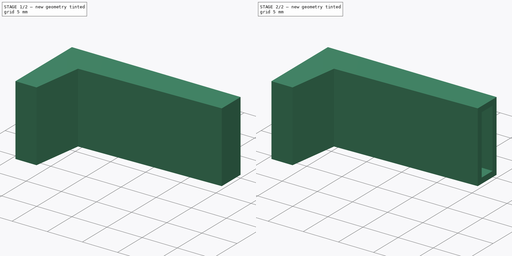
[diagram: build sequence overview — one tinted view per stage of 2, left to right]
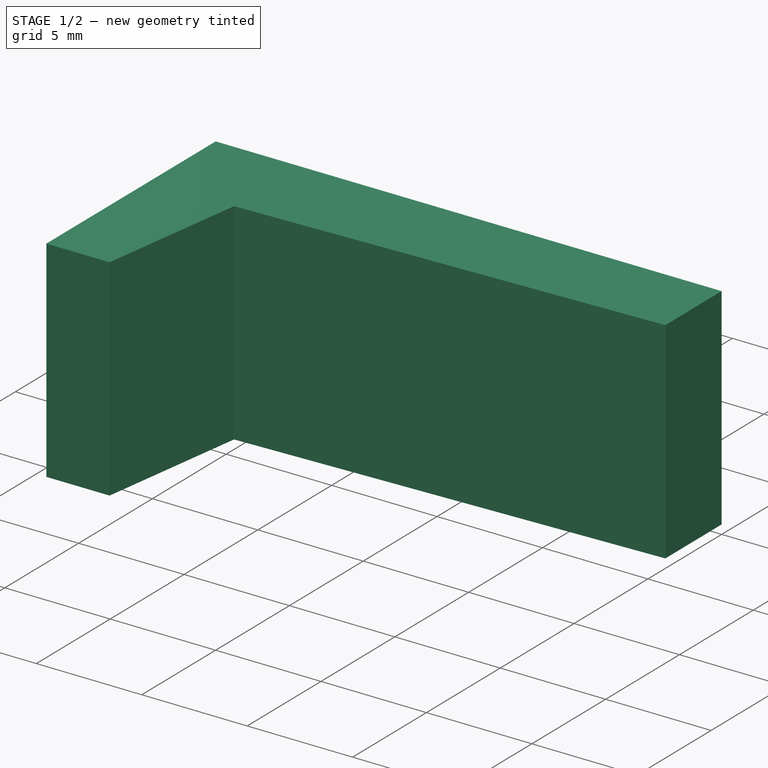
[diagram: stage 1 of 2 — iso view after this stage's code; geometry added in this stage tinted green]
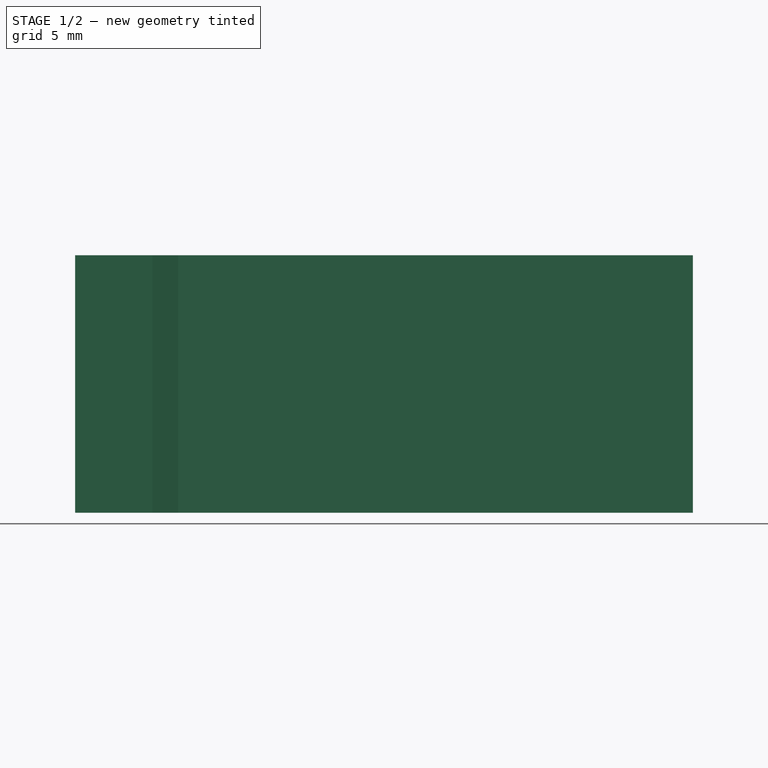
[diagram: stage 1 of 2 — front view after this stage's code; geometry added in this stage tinted green]
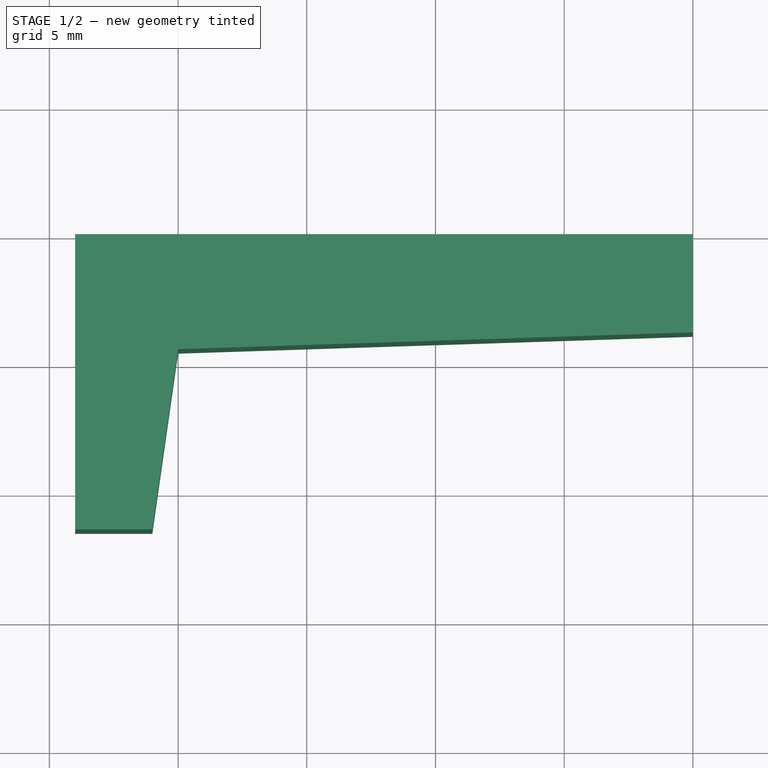
[diagram: stage 1 of 2 — top view after this stage's code; geometry added in this stage tinted green]
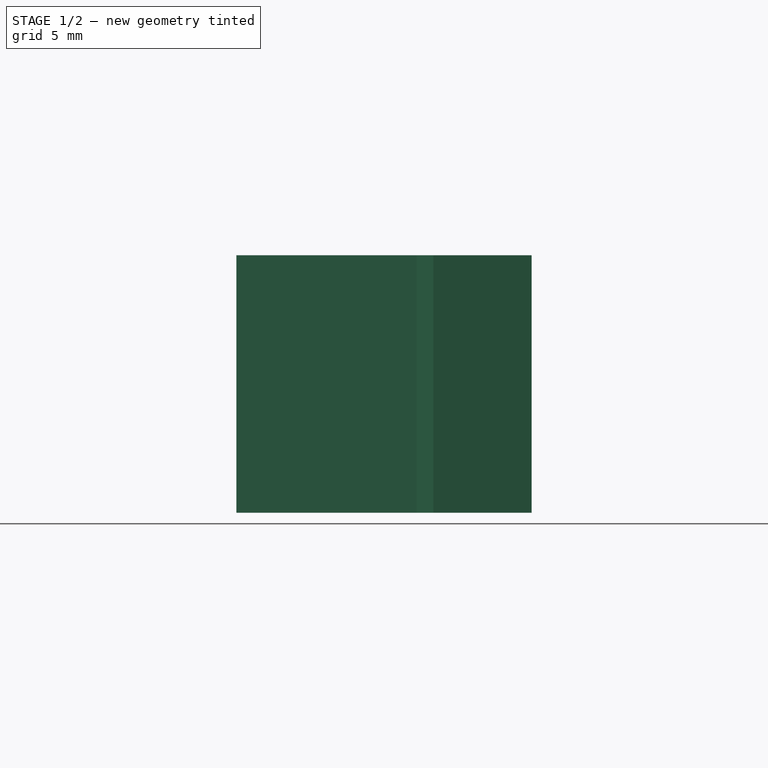
[diagram: stage 1 of 2 — right view after this stage's code; geometry added in this stage tinted green]
FCSTD DOCUMENT  (FreeCAD 0.18R16131 (Git))
Label: peg_8mm_rods
License: All rights reserved
LicenseURL: http://en.wikipedia.org/wiki/All_rights_reserved
objects: Sketcher::SketchObject×2, PartDesign::Pad×2, Part::Cut×1
note: 7 computed .brp shape members not serialized (recipe doc carries the construction recipe); baked Part::Feature solids carry a one-line shape summary decoded from their .brp

FEATURE [Sketcher::SketchObject] Sketch  label="PegSketch"
  MapMode = 5
  sketch-geometry (10):
    g0: LineSegment [constr] StartX=0 StartY=0 StartZ=0 EndX=26 EndY=0 EndZ=0
    g1: LineSegment [constr] StartX=26 StartY=0 StartZ=0 EndX=26 EndY=-3.62 EndZ=0
    g2: LineSegment [constr] StartX=26 StartY=-3.62 StartZ=0 EndX=0 EndY=-4.47 EndZ=0
    g3: LineSegment [constr] StartX=0 StartY=-4.47 StartZ=0 EndX=0 EndY=0 EndZ=0
    g4: LineSegment StartX=20 StartY=0 StartZ=0 EndX=20 EndY=-3.81615 EndZ=0
    g5: LineSegment StartX=20 StartY=0 StartZ=0 EndX=-4 EndY=0 EndZ=0
    g6: LineSegment StartX=-4 StartY=0 StartZ=0 EndX=-4 EndY=-11.47 EndZ=0
    g7: LineSegment StartX=-4 StartY=-11.47 StartZ=0 EndX=-1 EndY=-11.47 EndZ=0
    g8: LineSegment StartX=-1 StartY=-11.47 StartZ=0 EndX=0 EndY=-4.47 EndZ=0
    g9: LineSegment StartX=0 StartY=-4.47 StartZ=0 EndX=20 EndY=-3.81615 EndZ=0
  constraints (28):
    c: Horizontal(g0)
    c: Coincident(g0,g1)
    c: Vertical(g1)
    c: Coincident(g1,g2)
    c: Coincident(g2,g3)
    c: Coincident(g3,g0)
    c: Vertical(g3)
    c: DistanceY(g2,g0) = 4.47
    c: DistanceY(g1,g0) = 3.62
    c: DistanceX(g0,g0) = 26
    c: Coincident(g0,g-1)
    c: Vertical(g4)
    c: PointOnObject(g4,g0)
    c: PointOnObject(g4,g2)
    c: DistanceX(g-1,g4) = 20
    c: Coincident(g5,g4)
    c: PointOnObject(g5,g-1)
    c: DistanceX(g5,g5) = 24
    c: Coincident(g6,g5)
    c: Vertical(g6)
    c: DistanceY(g6,g6) = 11.47
    c: Coincident(g7,g6)
    c: Horizontal(g7)
    c: DistanceX(g7,g7) = 3
    c: Coincident(g8,g7)
    c: Coincident(g8,g2)
    c: Coincident(g9,g2)
    c: Coincident(g9,g4)
FEATURE [PartDesign::Pad] Pad  label="PegPad"
  Length = 10
  Length2 = 100
  Profile = -> Sketch
  Type = 0
FEATURE [Sketcher::SketchObject] Sketch001  label="PegCutOutSketch"
  MapMode = 5
  Placement = pos=(0,0,0.8) rot=(0,0,1;0rad)
  sketch-geometry (11):
    g0: LineSegment [constr] StartX=0 StartY=0 StartZ=0 EndX=26 EndY=0 EndZ=0
    g1: LineSegment [constr] StartX=26 StartY=0 StartZ=0 EndX=26 EndY=-3.62 EndZ=0
    g2: LineSegment [constr] StartX=26 StartY=-3.62 StartZ=0 EndX=0 EndY=-4.47 EndZ=0
    g3: LineSegment [constr] StartX=0 StartY=-4.47 StartZ=0 EndX=0 EndY=0 EndZ=0
    g4: LineSegment [constr] StartX=20 StartY=0 StartZ=0 EndX=20 EndY=-3.81615 EndZ=0
    g5: GeomPoint [constr] X=20 Y=-0.8 Z=0
    g6: LineSegment StartX=20 StartY=-0.8 StartZ=0 EndX=-4 EndY=-0.8 EndZ=0
    g7: LineSegment StartX=-4 StartY=-0.8 StartZ=0 EndX=-4 EndY=-3.67 EndZ=0
    g8: LineSegment StartX=-4 StartY=-3.67 StartZ=0 EndX=0 EndY=-3.67 EndZ=0
    g9: LineSegment StartX=0 StartY=-3.67 StartZ=0 EndX=20 EndY=-3.01615 EndZ=0
    g10: LineSegment StartX=20 StartY=-3.01615 StartZ=0 EndX=20 EndY=-0.8 EndZ=0
  constraints (31):
    c: PointOnObject(g4,g0)
    c: DistanceY(g5,g4) = 0.8
    c: Coincident(g6,g5)
    c: Horizontal(g6)
    c: Coincident(g6,g7)
    c: Vertical(g7)
    c: Coincident(g7,g8)
    c: Horizontal(g8)
    c: DistanceX(g0,g0) = 26
    c: DistanceY(g1,g1) = 3.62
    c: DistanceY(g3,g3) = 4.47
    c: Coincident(g3,g-1)
    c: Coincident(g3,g2)
    c: Vertical(g3)
    c: Coincident(g9,g8)
    c: PointOnObject(g8,g3)
    c: DistanceY(g2,g8) = 0.8
    c: DistanceX(g6,g6) = 24
    c: Coincident(g10,g5)
    c: Vertical(g10)
    c: Coincident(g10,g9)
    c: PointOnObject(g9,g4)
    c: Vertical(g4)
    c: DistanceX(g0,g4) = 20
    c: Coincident(g0,g-1)
    c: Horizontal(g0)
    c: PointOnObject(g4,g2)
    c: DistanceY(g4,g9) = 0.8
    c: Coincident(g2,g1)
    c: Vertical(g1)
    c: Coincident(g1,g0)
FEATURE [PartDesign::Pad] Pad001  label="PegCutOutPad"
  Length = 8.4
  Length2 = 100
  Placement = pos=(0,0,0.8) rot=(0,0,1;0rad)
  Profile = -> Sketch001
  Type = 0
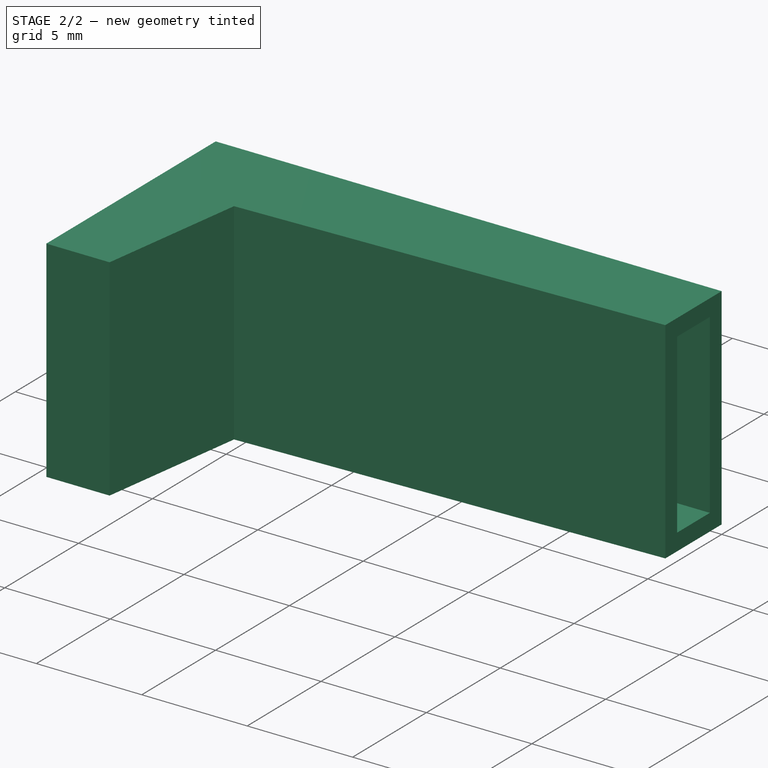
[diagram: stage 2 of 2 — iso view after this stage's code; geometry added in this stage tinted green]
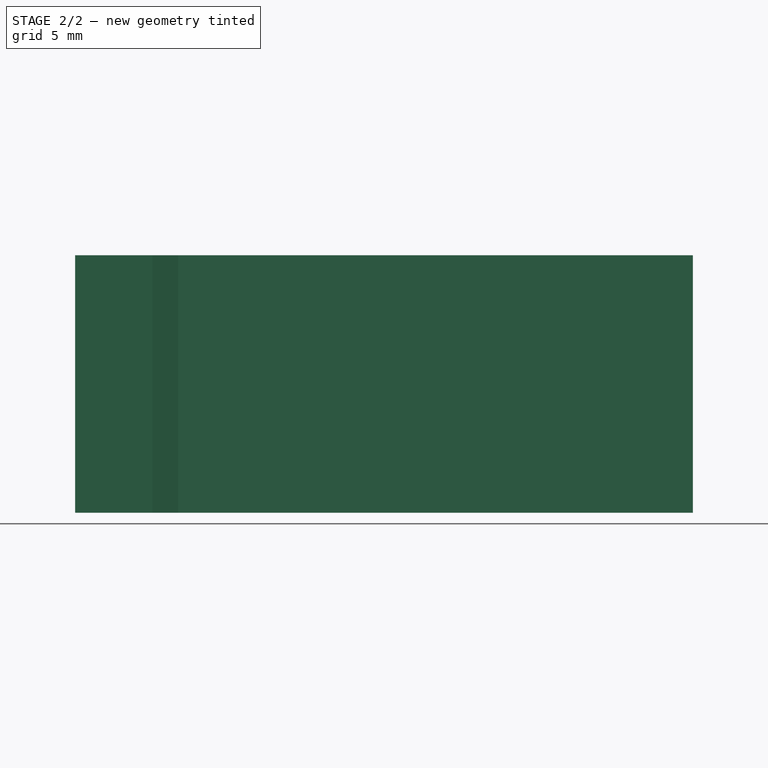
[diagram: stage 2 of 2 — front view after this stage's code; geometry added in this stage tinted green]
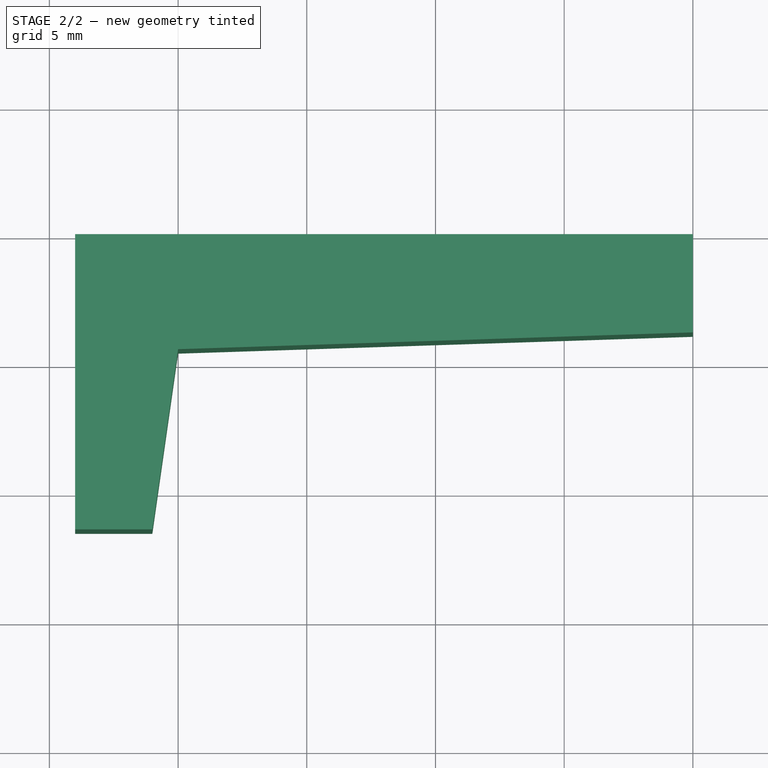
[diagram: stage 2 of 2 — top view after this stage's code; geometry added in this stage tinted green]
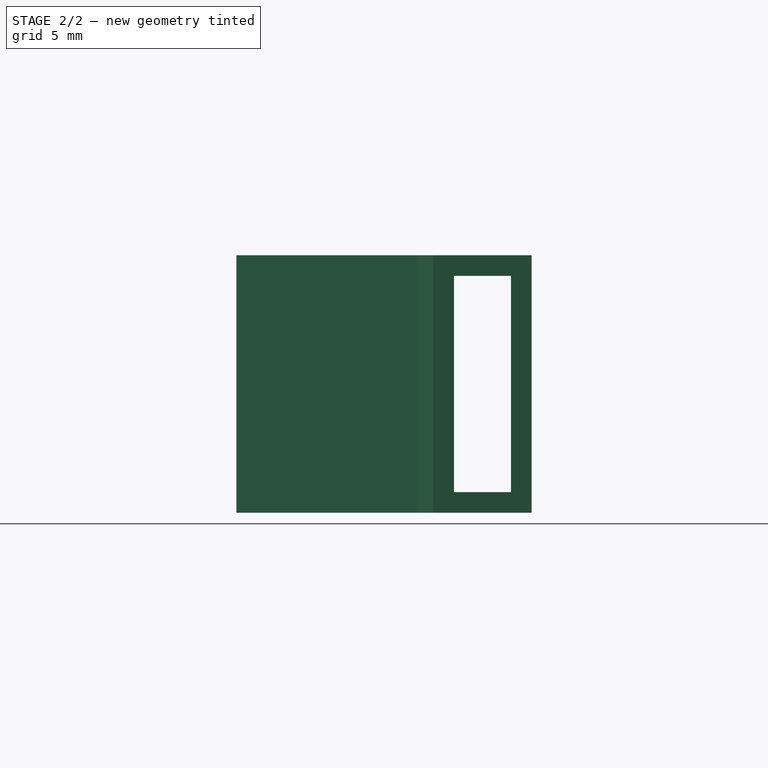
[diagram: stage 2 of 2 — right view after this stage's code; geometry added in this stage tinted green]
FEATURE [Part::Cut] Cut  label="PegCut"
  Base = -> Pad
  Tool = -> Pad001
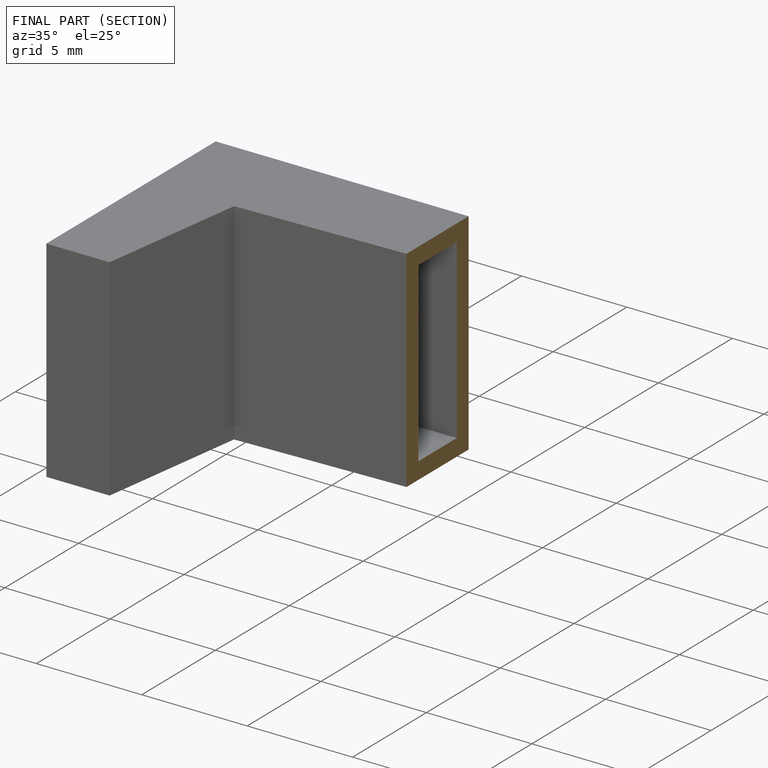
[diagram: finished part — half-section view (interior)]
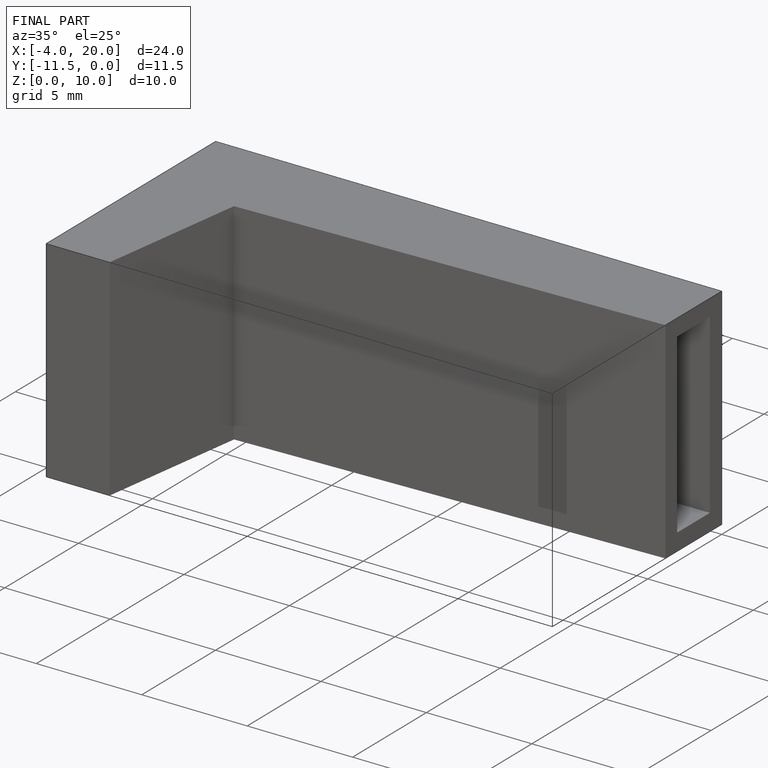
[diagram: finished part — iso view with bounding-box wireframe]
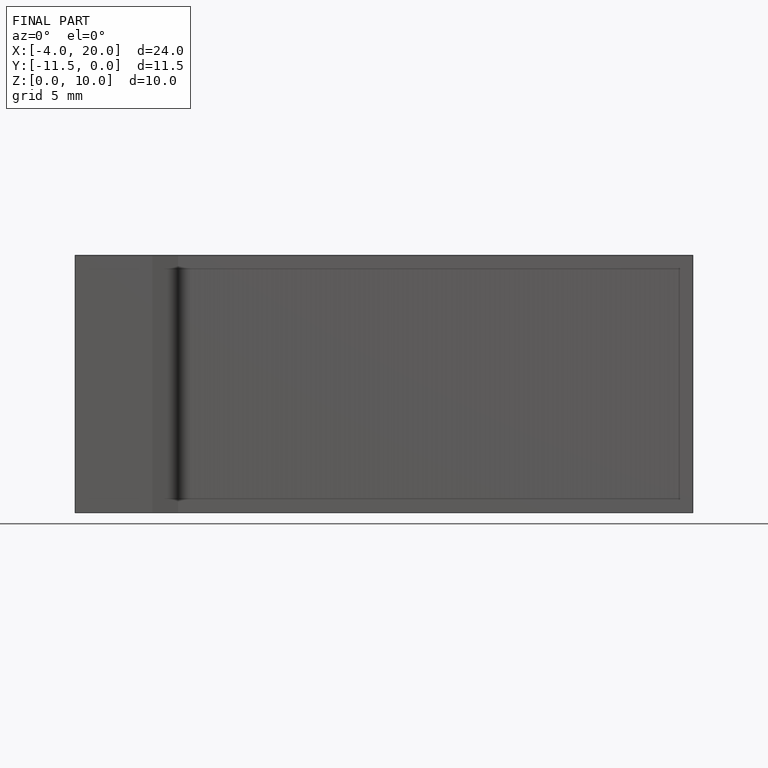
[diagram: finished part — front view with bounding-box wireframe]
